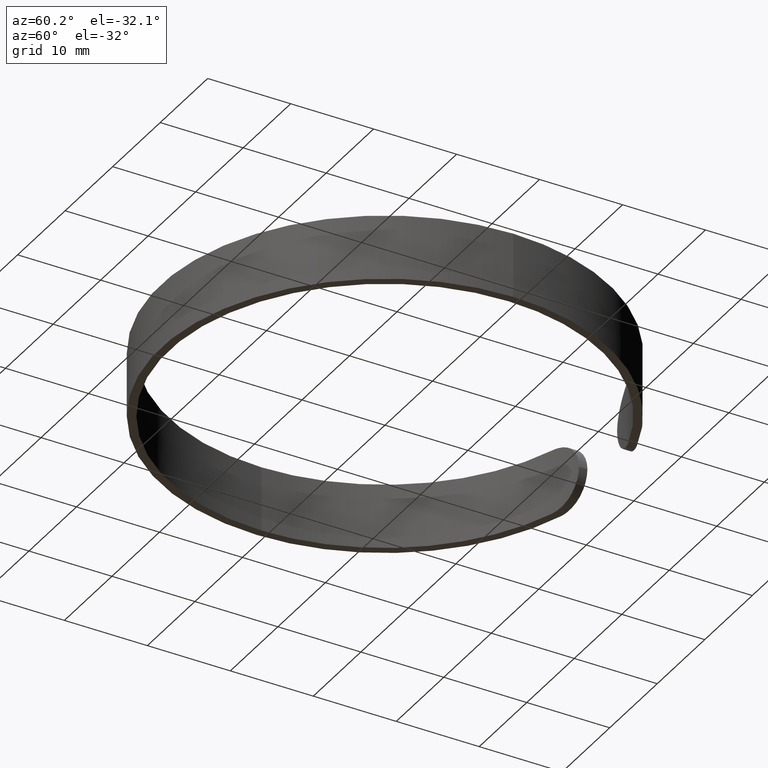
[diagram: clean part render]
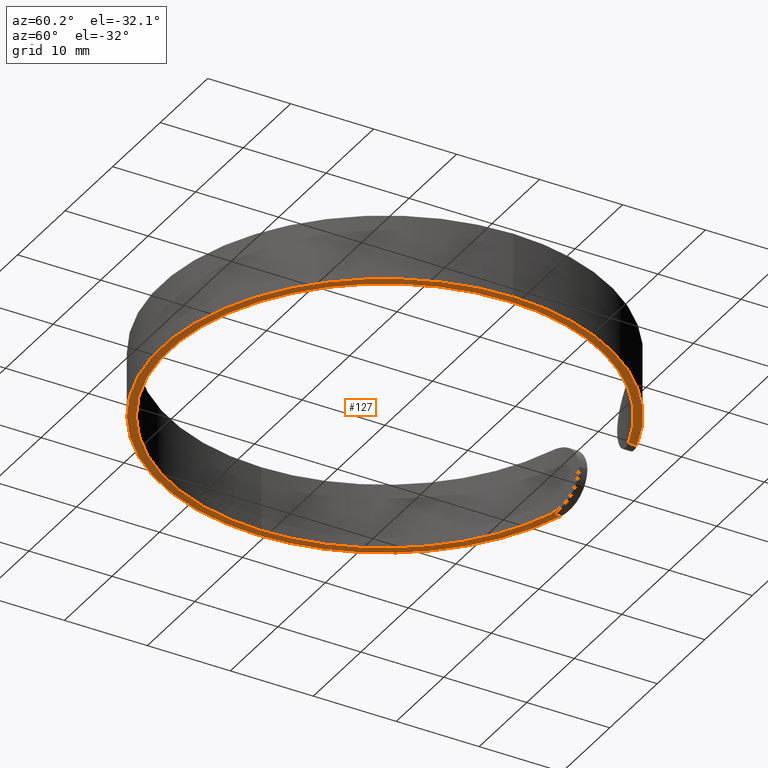
[diagram: same view with one face highlighted and labeled with its STEP entity id]
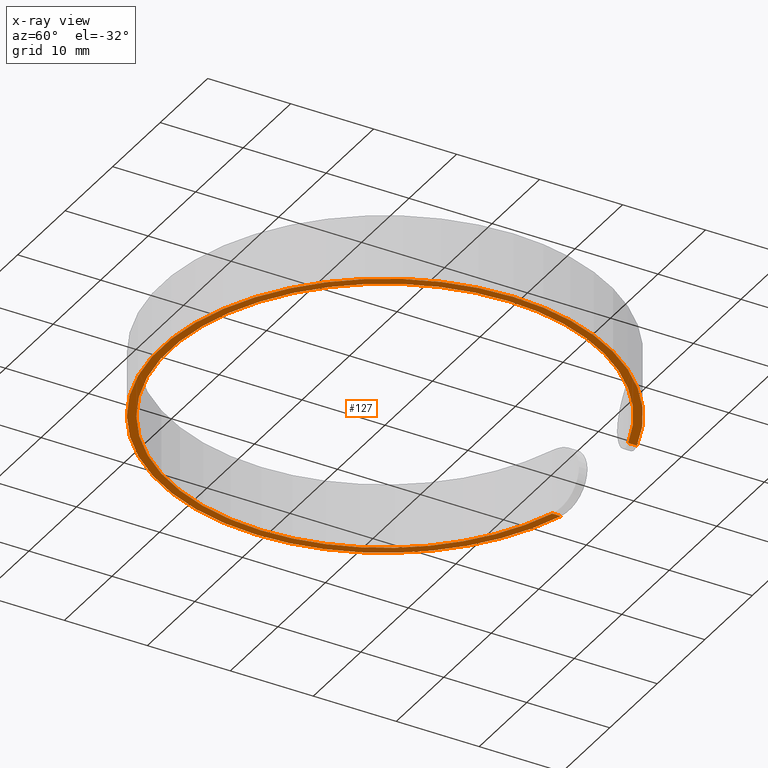
[diagram: x-ray of the same camera — body ghosted, the highlighted face saturated]
A machine part, auxiliary view. The second image highlights one B-rep face of the part: STEP entity #127.
The next image is the same camera in x-ray: the body ghosted, the highlighted face saturated — about 0% of this face is hidden behind the body in this view.
In plain terms, the highlighted planar face has unit normal (0, 0, 1).
Its self-contained STEP definition (entity closure, byte-faithful):
#1 = EDGE_LOOP ( 'NONE', ( #592, #186, #442, #582, #383, #9, #589, #154 ) ) ;
#9 = ORIENTED_EDGE ( 'NONE', *, *, #540, .T. ) ;
#12 = DIRECTION ( 'NONE',  ( 1.000000000000000000, 0.0000000000000000000, -0.0000000000000000000 ) ) ;
#15 = PLANE ( 'NONE',  #343 ) ;
#47 = VERTEX_POINT ( 'NONE', #148 ) ;
#50 = CARTESIAN_POINT ( 'NONE',  ( -8.000000000000010700, 24.73863375370595500, 0.0000000000000000000 ) ) ;
#51 = DIRECTION ( 'NONE',  ( 1.000000000000000000, 0.0000000000000000000, 0.0000000000000000000 ) ) ;
#54 = AXIS2_PLACEMENT_3D ( 'NONE', #495, #188, #51 ) ;
#57 = CARTESIAN_POINT ( 'NONE',  ( 7.999999999999774400, -6.859361742516716200E-014, 0.0000000000000000000 ) ) ;
#79 = VERTEX_POINT ( 'NONE', #197 ) ;
#80 = VERTEX_POINT ( 'NONE', #50 ) ;
#83 = EDGE_CURVE ( 'NONE', #492, #628, #304, .T. ) ;
#88 = VERTEX_POINT ( 'NONE', #299 ) ;
#89 = EDGE_CURVE ( 'NONE', #222, #492, #416, .T. ) ;
#100 = AXIS2_PLACEMENT_3D ( 'NONE', #459, #104, #191 ) ;
#104 = DIRECTION ( 'NONE',  ( -0.0000000000000000000, -0.0000000000000000000, -1.000000000000000000 ) ) ;
#127 = ADVANCED_FACE ( 'NONE', ( #444 ), #15, .F. ) ;
#129 = CARTESIAN_POINT ( 'NONE',  ( 7.999999999999994700, 25.78759391645525400, 0.0000000000000000000 ) ) ;
#137 = CARTESIAN_POINT ( 'NONE',  ( 0.0000000000000000000, 0.0000000000000000000, 0.0000000000000000000 ) ) ;
#148 = CARTESIAN_POINT ( 'NONE',  ( 25.99999999999999600, 3.184081677783117800E-015, 0.0000000000000000000 ) ) ;
#150 = DIRECTION ( 'NONE',  ( 1.000000000000000000, 0.0000000000000000000, 0.0000000000000000000 ) ) ;
#154 = ORIENTED_EDGE ( 'NONE', *, *, #578, .F. ) ;
#155 = CARTESIAN_POINT ( 'NONE',  ( 0.0000000000000000000, 0.0000000000000000000, 0.0000000000000000000 ) ) ;
#169 = CARTESIAN_POINT ( 'NONE',  ( 0.0000000000000000000, 0.0000000000000000000, 0.0000000000000000000 ) ) ;
#170 = AXIS2_PLACEMENT_3D ( 'NONE', #568, #474, #426 ) ;
#186 = ORIENTED_EDGE ( 'NONE', *, *, #636, .T. ) ;
#188 = DIRECTION ( 'NONE',  ( 0.0000000000000000000, 0.0000000000000000000, 1.000000000000000000 ) ) ;
#191 = DIRECTION ( 'NONE',  ( 1.000000000000000000, 0.0000000000000000000, 0.0000000000000000000 ) ) ;
#197 = CARTESIAN_POINT ( 'NONE',  ( -25.99999999999999600, 0.0000000000000000000, 0.0000000000000000000 ) ) ;
#222 = VERTEX_POINT ( 'NONE', #515 ) ;
#240 = EDGE_CURVE ( 'NONE', #79, #80, #455, .T. ) ;
#247 = AXIS2_PLACEMENT_3D ( 'NONE', #137, #488, #340 ) ;
#257 = EDGE_CURVE ( 'NONE', #88, #47, #472, .T. ) ;
#271 = VECTOR ( 'NONE', #609, 1000.000000000000000 ) ;
#296 = DIRECTION ( 'NONE',  ( 0.0000000000000000000, 0.0000000000000000000, 1.000000000000000000 ) ) ;
#299 = CARTESIAN_POINT ( 'NONE',  ( 7.999999999999986700, 24.73863375370596200, 0.0000000000000000000 ) ) ;
#304 = CIRCLE ( 'NONE', #54, 27.00000000000000000 ) ;
#329 = CIRCLE ( 'NONE', #247, 27.00000000000000000 ) ;
#340 = DIRECTION ( 'NONE',  ( 1.000000000000000000, 0.0000000000000000000, 0.0000000000000000000 ) ) ;
#343 = AXIS2_PLACEMENT_3D ( 'NONE', #155, #461, #12 ) ;
#348 = CIRCLE ( 'NONE', #100, 25.99999999999999600 ) ;
#383 = ORIENTED_EDGE ( 'NONE', *, *, #89, .F. ) ;
#416 = CIRCLE ( 'NONE', #525, 27.00000000000000000 ) ;
#417 = VERTEX_POINT ( 'NONE', #129 ) ;
#422 = VECTOR ( 'NONE', #643, 1000.000000000000000 ) ;
#426 = DIRECTION ( 'NONE',  ( 1.000000000000000000, 0.0000000000000000000, 0.0000000000000000000 ) ) ;
#442 = ORIENTED_EDGE ( 'NONE', *, *, #523, .F. ) ;
#444 = FACE_OUTER_BOUND ( 'NONE', #1, .T. ) ;
#455 = CIRCLE ( 'NONE', #575, 25.99999999999999600 ) ;
#459 = CARTESIAN_POINT ( 'NONE',  ( 0.0000000000000000000, 0.0000000000000000000, 0.0000000000000000000 ) ) ;
#461 = DIRECTION ( 'NONE',  ( 0.0000000000000000000, 0.0000000000000000000, 1.000000000000000000 ) ) ;
#464 = LINE ( 'NONE', #57, #271 ) ;
#472 = CIRCLE ( 'NONE', #170, 25.99999999999999600 ) ;
#474 = DIRECTION ( 'NONE',  ( -0.0000000000000000000, -0.0000000000000000000, -1.000000000000000000 ) ) ;
#483 = LINE ( 'NONE', #530, #422 ) ;
#488 = DIRECTION ( 'NONE',  ( 0.0000000000000000000, 0.0000000000000000000, 1.000000000000000000 ) ) ;
#492 = VERTEX_POINT ( 'NONE', #531 ) ;
#495 = CARTESIAN_POINT ( 'NONE',  ( 0.0000000000000000000, 0.0000000000000000000, 0.0000000000000000000 ) ) ;
#514 = DIRECTION ( 'NONE',  ( -0.0000000000000000000, -0.0000000000000000000, -1.000000000000000000 ) ) ;
#515 = CARTESIAN_POINT ( 'NONE',  ( -8.000000000000005300, 25.78759391645525100, 0.0000000000000000000 ) ) ;
#519 = DIRECTION ( 'NONE',  ( 1.000000000000000000, 0.0000000000000000000, 0.0000000000000000000 ) ) ;
#523 = EDGE_CURVE ( 'NONE', #628, #417, #329, .T. ) ;
#525 = AXIS2_PLACEMENT_3D ( 'NONE', #594, #296, #150 ) ;
#530 = CARTESIAN_POINT ( 'NONE',  ( -8.000000000000136800, 4.115617045510244500E-014, 0.0000000000000000000 ) ) ;
#531 = CARTESIAN_POINT ( 'NONE',  ( -27.00000000000000000, 0.0000000000000000000, 0.0000000000000000000 ) ) ;
#540 = EDGE_CURVE ( 'NONE', #222, #80, #483, .T. ) ;
#550 = CARTESIAN_POINT ( 'NONE',  ( 27.00000000000000000, 3.306546357697853700E-015, 0.0000000000000000000 ) ) ;
#568 = CARTESIAN_POINT ( 'NONE',  ( 0.0000000000000000000, 0.0000000000000000000, 0.0000000000000000000 ) ) ;
#575 = AXIS2_PLACEMENT_3D ( 'NONE', #169, #514, #519 ) ;
#578 = EDGE_CURVE ( 'NONE', #47, #79, #348, .T. ) ;
#582 = ORIENTED_EDGE ( 'NONE', *, *, #83, .F. ) ;
#589 = ORIENTED_EDGE ( 'NONE', *, *, #240, .F. ) ;
#592 = ORIENTED_EDGE ( 'NONE', *, *, #257, .F. ) ;
#594 = CARTESIAN_POINT ( 'NONE',  ( 0.0000000000000000000, 0.0000000000000000000, 0.0000000000000000000 ) ) ;
#609 = DIRECTION ( 'NONE',  ( 8.574202178146136600E-015, 1.000000000000000000, -0.0000000000000000000 ) ) ;
#628 = VERTEX_POINT ( 'NONE', #550 ) ;
#636 = EDGE_CURVE ( 'NONE', #88, #417, #464, .T. ) ;
#643 = DIRECTION ( 'NONE',  ( -5.144521306887717300E-015, -1.000000000000000000, 0.0000000000000000000 ) ) ;